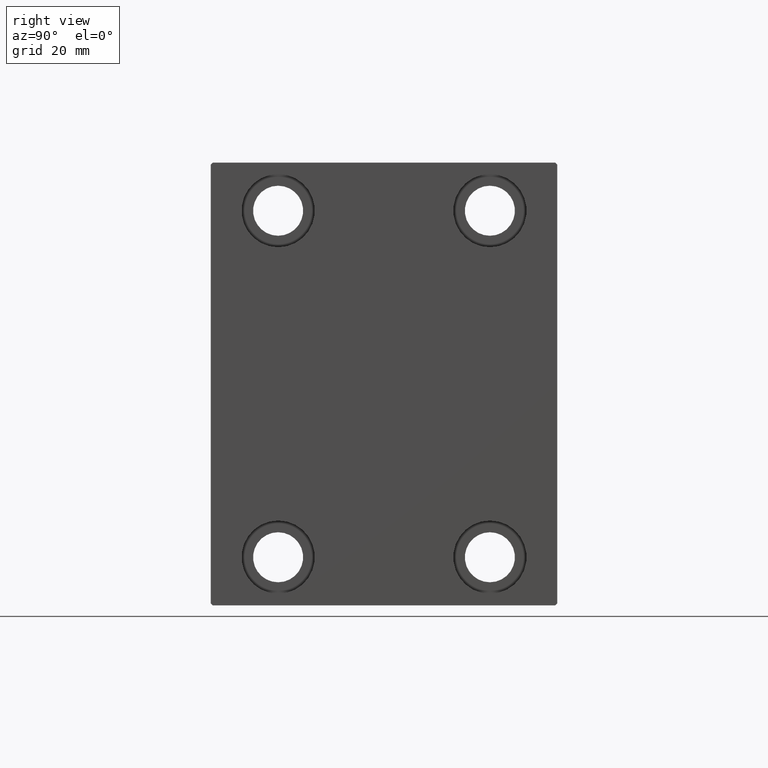
[diagram: clean part render]
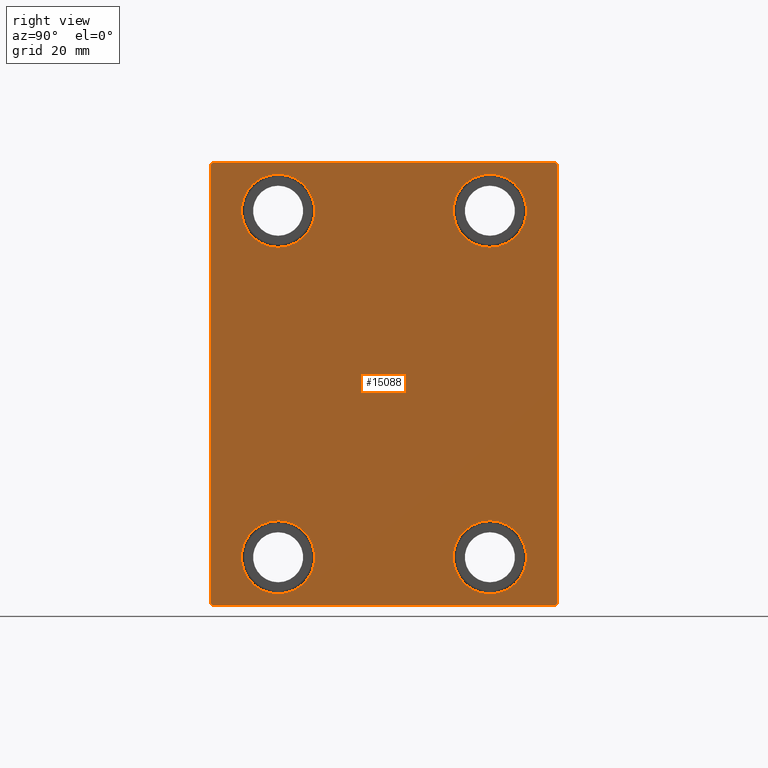
[diagram: same view with one face highlighted and labeled with its STEP entity id]
A machine part, right view. The second image highlights one B-rep face of the part: STEP entity #15088.
In plain terms, the highlighted planar face has unit normal (1, 0, 0).
Its self-contained STEP definition (entity closure, byte-faithful):
#116 = ORIENTED_EDGE ( 'NONE', *, *, #6702, .T. ) ;
#152 = EDGE_CURVE ( 'NONE', #39931, #27925, #27743, .T. ) ;
#614 = EDGE_CURVE ( 'NONE', #2326, #18051, #37172, .T. ) ;
#716 = AXIS2_PLACEMENT_3D ( 'NONE', #16711, #27118, #39732 ) ;
#872 = EDGE_LOOP ( 'NONE', ( #24876, #9937, #22567, #40694, #40879, #12933, #2043, #21206 ) ) ;
#1532 = VECTOR ( 'NONE', #35380, 1000.000000000000114 ) ;
#1585 = DIRECTION ( 'NONE',  ( 0.000000000000000000, 0.000000000000000000, 1.000000000000000000 ) ) ;
#2043 = ORIENTED_EDGE ( 'NONE', *, *, #23382, .T. ) ;
#2097 = ORIENTED_EDGE ( 'NONE', *, *, #18584, .T. ) ;
#2326 = VERTEX_POINT ( 'NONE', #4895 ) ;
#2960 = CIRCLE ( 'NONE', #27751, 9.500000000000001776 ) ;
#3096 = DIRECTION ( 'NONE',  ( -1.000000000000000000, -0.000000000000000000, -0.000000000000000000 ) ) ;
#3244 = PLANE ( 'NONE',  #5592 ) ;
#3732 = EDGE_CURVE ( 'NONE', #12430, #16810, #5731, .T. ) ;
#3975 = EDGE_CURVE ( 'NONE', #12172, #39931, #17672, .T. ) ;
#4090 = ORIENTED_EDGE ( 'NONE', *, *, #36579, .T. ) ;
#4124 = EDGE_LOOP ( 'NONE', ( #34062, #41906 ) ) ;
#4155 = CARTESIAN_POINT ( 'NONE',  ( 108.0000000000000000, -45.00000000000000000, 56.99999999999999289 ) ) ;
#4335 = VECTOR ( 'NONE', #15148, 1000.000000000000000 ) ;
#4336 = CARTESIAN_POINT ( 'NONE',  ( 108.0000000000000000, -44.50000000000002842, -57.50000000000000711 ) ) ;
#4426 = VERTEX_POINT ( 'NONE', #22039 ) ;
#4616 = LINE ( 'NONE', #18130, #21241 ) ;
#4893 = DIRECTION ( 'NONE',  ( 0.000000000000000000, 0.000000000000000000, -1.000000000000000000 ) ) ;
#4895 = CARTESIAN_POINT ( 'NONE',  ( 108.0000000000000000, 45.00000000000000000, 57.00000000000000711 ) ) ;
#4923 = DIRECTION ( 'NONE',  ( 0.000000000000000000, 0.000000000000000000, 1.000000000000000000 ) ) ;
#5442 = CARTESIAN_POINT ( 'NONE',  ( 108.0000000000000000, 45.00000000000001421, -57.50000000000000711 ) ) ;
#5592 = AXIS2_PLACEMENT_3D ( 'NONE', #10370, #43785, #13458 ) ;
#5684 = LINE ( 'NONE', #8587, #1532 ) ;
#5731 = LINE ( 'NONE', #29883, #29070 ) ;
#5921 = VERTEX_POINT ( 'NONE', #33377 ) ;
#6161 = DIRECTION ( 'NONE',  ( -0.000000000000000000, -0.7071067811865474617, 0.7071067811865474617 ) ) ;
#6587 = DIRECTION ( 'NONE',  ( 0.000000000000000000, 0.000000000000000000, 1.000000000000000000 ) ) ;
#6602 = VERTEX_POINT ( 'NONE', #21691 ) ;
#6702 = EDGE_CURVE ( 'NONE', #23329, #42388, #30511, .T. ) ;
#6731 = VERTEX_POINT ( 'NONE', #20109 ) ;
#7880 = VECTOR ( 'NONE', #11909, 1000.000000000000114 ) ;
#8144 = VERTEX_POINT ( 'NONE', #22076 ) ;
#8587 = CARTESIAN_POINT ( 'NONE',  ( 108.0000000000000000, -51.00000000000001421, -51.00000000000001421 ) ) ;
#8591 = DIRECTION ( 'NONE',  ( -1.000000000000000000, -0.000000000000000000, -0.000000000000000000 ) ) ;
#8996 = ORIENTED_EDGE ( 'NONE', *, *, #26873, .T. ) ;
#9442 = DIRECTION ( 'NONE',  ( -1.000000000000000000, -0.000000000000000000, -0.000000000000000000 ) ) ;
#9728 = CARTESIAN_POINT ( 'NONE',  ( 108.0000000000000000, 51.00000000000001421, 51.00000000000001421 ) ) ;
#9937 = ORIENTED_EDGE ( 'NONE', *, *, #3975, .T. ) ;
#9945 = VECTOR ( 'NONE', #6161, 1000.000000000000114 ) ;
#10010 = AXIS2_PLACEMENT_3D ( 'NONE', #12588, #26087, #6587 ) ;
#10370 = CARTESIAN_POINT ( 'NONE',  ( 108.0000000000000000, 0.000000000000000000, 0.000000000000000000 ) ) ;
#11236 = CARTESIAN_POINT ( 'NONE',  ( 108.0000000000000000, 44.50000000000002842, 57.50000000000000711 ) ) ;
#11909 = DIRECTION ( 'NONE',  ( 0.000000000000000000, -0.7071067811865474617, -0.7071067811865474617 ) ) ;
#12172 = VERTEX_POINT ( 'NONE', #14606 ) ;
#12430 = VERTEX_POINT ( 'NONE', #4336 ) ;
#12588 = CARTESIAN_POINT ( 'NONE',  ( 108.0000000000000000, -27.49999999999998934, 45.00000000000000711 ) ) ;
#12760 = LINE ( 'NONE', #5442, #27050 ) ;
#12933 = ORIENTED_EDGE ( 'NONE', *, *, #17135, .T. ) ;
#13157 = CARTESIAN_POINT ( 'NONE',  ( 108.0000000000000000, 27.49999999999998934, -54.49999999999998579 ) ) ;
#13245 = FACE_BOUND ( 'NONE', #4124, .T. ) ;
#13458 = DIRECTION ( 'NONE',  ( 0.000000000000000000, 0.000000000000000000, -1.000000000000000000 ) ) ;
#14371 = CARTESIAN_POINT ( 'NONE',  ( 108.0000000000000000, -51.00000000000000000, 51.00000000000000000 ) ) ;
#14606 = CARTESIAN_POINT ( 'NONE',  ( 108.0000000000000000, -44.49999999999997158, 57.49999999999999289 ) ) ;
#15088 = ADVANCED_FACE ( 'NONE', ( #13245, #26743, #20110, #40685, #33614 ), #3244, .T. ) ;
#15148 = DIRECTION ( 'NONE',  ( 0.000000000000000000, -1.000000000000000000, -1.541976423090495387E-16 ) ) ;
#15730 = CARTESIAN_POINT ( 'NONE',  ( 108.0000000000000000, -27.49999999999998934, 54.50000000000000711 ) ) ;
#16711 = CARTESIAN_POINT ( 'NONE',  ( 108.0000000000000000, -27.50000000000000000, -44.99999999999998579 ) ) ;
#16810 = VERTEX_POINT ( 'NONE', #34591 ) ;
#17135 = EDGE_CURVE ( 'NONE', #16810, #22523, #4616, .T. ) ;
#17672 = LINE ( 'NONE', #14371, #7880 ) ;
#18051 = VERTEX_POINT ( 'NONE', #11236 ) ;
#18130 = CARTESIAN_POINT ( 'NONE',  ( 108.0000000000000000, 51.00000000000001421, -51.00000000000001421 ) ) ;
#18131 = EDGE_CURVE ( 'NONE', #6602, #8144, #31848, .T. ) ;
#18280 = EDGE_CURVE ( 'NONE', #4426, #6731, #43860, .T. ) ;
#18584 = EDGE_CURVE ( 'NONE', #42388, #23329, #25519, .T. ) ;
#20085 = EDGE_CURVE ( 'NONE', #18051, #12172, #25764, .T. ) ;
#20109 = CARTESIAN_POINT ( 'NONE',  ( 108.0000000000000000, 27.50000000000001066, 35.50000000000000711 ) ) ;
#20110 = FACE_BOUND ( 'NONE', #42049, .T. ) ;
#20398 = DIRECTION ( 'NONE',  ( 0.000000000000000000, 0.000000000000000000, 1.000000000000000000 ) ) ;
#20561 = VECTOR ( 'NONE', #4893, 1000.000000000000000 ) ;
#21206 = ORIENTED_EDGE ( 'NONE', *, *, #614, .T. ) ;
#21241 = VECTOR ( 'NONE', #35609, 1000.000000000000114 ) ;
#21691 = CARTESIAN_POINT ( 'NONE',  ( 108.0000000000000000, -27.50000000000000000, -35.49999999999998579 ) ) ;
#21885 = CARTESIAN_POINT ( 'NONE',  ( 108.0000000000000000, 45.00000000000001421, -57.00000000000003553 ) ) ;
#22039 = CARTESIAN_POINT ( 'NONE',  ( 108.0000000000000000, 27.50000000000001066, 54.50000000000000711 ) ) ;
#22076 = CARTESIAN_POINT ( 'NONE',  ( 108.0000000000000000, -27.50000000000000000, -54.49999999999998579 ) ) ;
#22349 = EDGE_CURVE ( 'NONE', #22944, #5921, #2960, .T. ) ;
#22492 = EDGE_CURVE ( 'NONE', #27925, #12430, #5684, .T. ) ;
#22523 = VERTEX_POINT ( 'NONE', #21885 ) ;
#22567 = ORIENTED_EDGE ( 'NONE', *, *, #152, .T. ) ;
#22944 = VERTEX_POINT ( 'NONE', #13157 ) ;
#23018 = ORIENTED_EDGE ( 'NONE', *, *, #18131, .T. ) ;
#23042 = DIRECTION ( 'NONE',  ( -1.000000000000000000, -0.000000000000000000, -0.000000000000000000 ) ) ;
#23329 = VERTEX_POINT ( 'NONE', #25397 ) ;
#23382 = EDGE_CURVE ( 'NONE', #22523, #2326, #12760, .T. ) ;
#24876 = ORIENTED_EDGE ( 'NONE', *, *, #20085, .T. ) ;
#24901 = CARTESIAN_POINT ( 'NONE',  ( 108.0000000000000000, -27.50000000000000000, -44.99999999999998579 ) ) ;
#25125 = AXIS2_PLACEMENT_3D ( 'NONE', #27030, #3096, #20398 ) ;
#25397 = CARTESIAN_POINT ( 'NONE',  ( 108.0000000000000000, -27.49999999999998934, 35.50000000000000711 ) ) ;
#25519 = CIRCLE ( 'NONE', #39641, 9.500000000000001776 ) ;
#25681 = DIRECTION ( 'NONE',  ( 0.000000000000000000, 1.000000000000000000, 0.000000000000000000 ) ) ;
#25764 = LINE ( 'NONE', #38611, #4335 ) ;
#26087 = DIRECTION ( 'NONE',  ( -1.000000000000000000, -0.000000000000000000, -0.000000000000000000 ) ) ;
#26471 = CIRCLE ( 'NONE', #30715, 9.500000000000001776 ) ;
#26743 = FACE_BOUND ( 'NONE', #34237, .T. ) ;
#26873 = EDGE_CURVE ( 'NONE', #8144, #6602, #41270, .T. ) ;
#27030 = CARTESIAN_POINT ( 'NONE',  ( 108.0000000000000000, 27.50000000000001066, 45.00000000000000711 ) ) ;
#27050 = VECTOR ( 'NONE', #28919, 1000.000000000000000 ) ;
#27118 = DIRECTION ( 'NONE',  ( -1.000000000000000000, -0.000000000000000000, -0.000000000000000000 ) ) ;
#27507 = CARTESIAN_POINT ( 'NONE',  ( 108.0000000000000000, -45.00000000000000000, -57.00000000000003553 ) ) ;
#27743 = LINE ( 'NONE', #42104, #20561 ) ;
#27751 = AXIS2_PLACEMENT_3D ( 'NONE', #28407, #28194, #1585 ) ;
#27925 = VERTEX_POINT ( 'NONE', #27507 ) ;
#28194 = DIRECTION ( 'NONE',  ( -1.000000000000000000, -0.000000000000000000, -0.000000000000000000 ) ) ;
#28407 = CARTESIAN_POINT ( 'NONE',  ( 108.0000000000000000, 27.49999999999998934, -44.99999999999998579 ) ) ;
#28919 = DIRECTION ( 'NONE',  ( 0.000000000000000000, -1.206764157201257045E-16, 1.000000000000000000 ) ) ;
#29070 = VECTOR ( 'NONE', #25681, 1000.000000000000000 ) ;
#29671 = CARTESIAN_POINT ( 'NONE',  ( 108.0000000000000000, 27.50000000000001066, 45.00000000000000711 ) ) ;
#29883 = CARTESIAN_POINT ( 'NONE',  ( 108.0000000000000000, -45.00000000000000000, -57.50000000000000711 ) ) ;
#29960 = AXIS2_PLACEMENT_3D ( 'NONE', #24901, #31960, #42136 ) ;
#30511 = CIRCLE ( 'NONE', #10010, 9.500000000000001776 ) ;
#30715 = AXIS2_PLACEMENT_3D ( 'NONE', #33340, #9442, #39975 ) ;
#31848 = CIRCLE ( 'NONE', #716, 9.500000000000001776 ) ;
#31960 = DIRECTION ( 'NONE',  ( -1.000000000000000000, -0.000000000000000000, -0.000000000000000000 ) ) ;
#32153 = EDGE_LOOP ( 'NONE', ( #8996, #23018 ) ) ;
#33331 = EDGE_CURVE ( 'NONE', #5921, #22944, #26471, .T. ) ;
#33340 = CARTESIAN_POINT ( 'NONE',  ( 108.0000000000000000, 27.49999999999998934, -44.99999999999998579 ) ) ;
#33377 = CARTESIAN_POINT ( 'NONE',  ( 108.0000000000000000, 27.49999999999998934, -35.49999999999998579 ) ) ;
#33614 = FACE_OUTER_BOUND ( 'NONE', #872, .T. ) ;
#34062 = ORIENTED_EDGE ( 'NONE', *, *, #22349, .T. ) ;
#34130 = ORIENTED_EDGE ( 'NONE', *, *, #18280, .T. ) ;
#34237 = EDGE_LOOP ( 'NONE', ( #116, #2097 ) ) ;
#34591 = CARTESIAN_POINT ( 'NONE',  ( 108.0000000000000000, 44.50000000000001421, -57.50000000000000711 ) ) ;
#35380 = DIRECTION ( 'NONE',  ( -0.000000000000000000, 0.7071067811865474617, -0.7071067811865474617 ) ) ;
#35609 = DIRECTION ( 'NONE',  ( -0.000000000000000000, 0.7071067811865474617, 0.7071067811865474617 ) ) ;
#36579 = EDGE_CURVE ( 'NONE', #6731, #4426, #40658, .T. ) ;
#37172 = LINE ( 'NONE', #9728, #9945 ) ;
#38611 = CARTESIAN_POINT ( 'NONE',  ( 108.0000000000000000, 45.00000000000000000, 57.50000000000000711 ) ) ;
#39570 = CARTESIAN_POINT ( 'NONE',  ( 108.0000000000000000, -27.49999999999998934, 45.00000000000000711 ) ) ;
#39641 = AXIS2_PLACEMENT_3D ( 'NONE', #39570, #8591, #42683 ) ;
#39732 = DIRECTION ( 'NONE',  ( 0.000000000000000000, 0.000000000000000000, 1.000000000000000000 ) ) ;
#39931 = VERTEX_POINT ( 'NONE', #4155 ) ;
#39975 = DIRECTION ( 'NONE',  ( 0.000000000000000000, 0.000000000000000000, 1.000000000000000000 ) ) ;
#40658 = CIRCLE ( 'NONE', #25125, 9.500000000000001776 ) ;
#40685 = FACE_BOUND ( 'NONE', #32153, .T. ) ;
#40694 = ORIENTED_EDGE ( 'NONE', *, *, #22492, .T. ) ;
#40879 = ORIENTED_EDGE ( 'NONE', *, *, #3732, .T. ) ;
#41270 = CIRCLE ( 'NONE', #29960, 9.500000000000001776 ) ;
#41906 = ORIENTED_EDGE ( 'NONE', *, *, #33331, .T. ) ;
#42049 = EDGE_LOOP ( 'NONE', ( #4090, #34130 ) ) ;
#42104 = CARTESIAN_POINT ( 'NONE',  ( 108.0000000000000000, -45.00000000000000000, 57.49999999999999289 ) ) ;
#42136 = DIRECTION ( 'NONE',  ( 0.000000000000000000, 0.000000000000000000, 1.000000000000000000 ) ) ;
#42388 = VERTEX_POINT ( 'NONE', #15730 ) ;
#42448 = AXIS2_PLACEMENT_3D ( 'NONE', #29671, #23042, #4923 ) ;
#42683 = DIRECTION ( 'NONE',  ( 0.000000000000000000, 0.000000000000000000, 1.000000000000000000 ) ) ;
#43785 = DIRECTION ( 'NONE',  ( 1.000000000000000000, 0.000000000000000000, 0.000000000000000000 ) ) ;
#43860 = CIRCLE ( 'NONE', #42448, 9.500000000000001776 ) ;